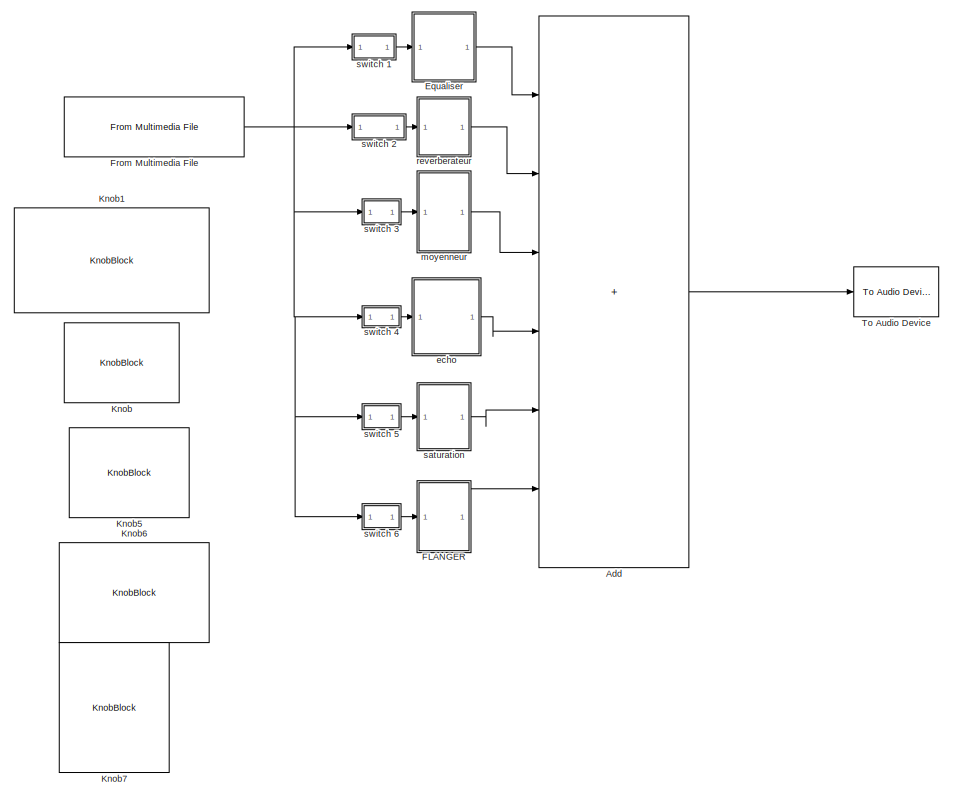
[diagram: root canvas - part 1/2, left side, full height]
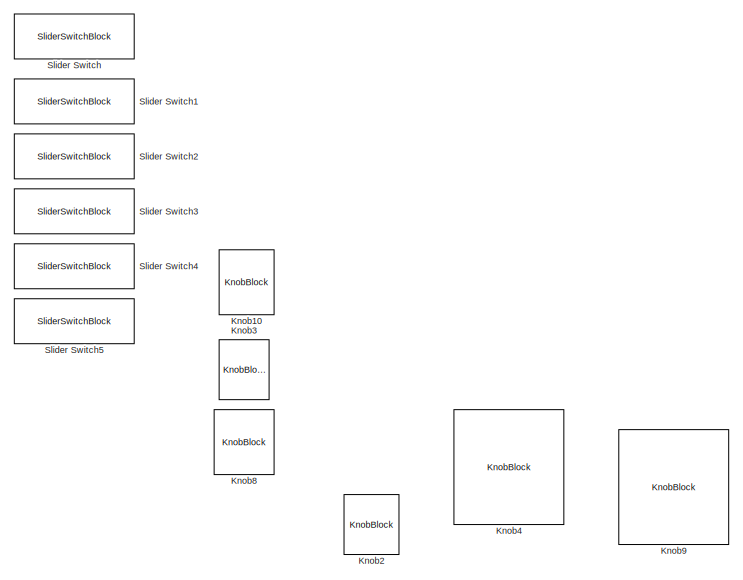
[diagram: root canvas - part 2/2, middle right region]
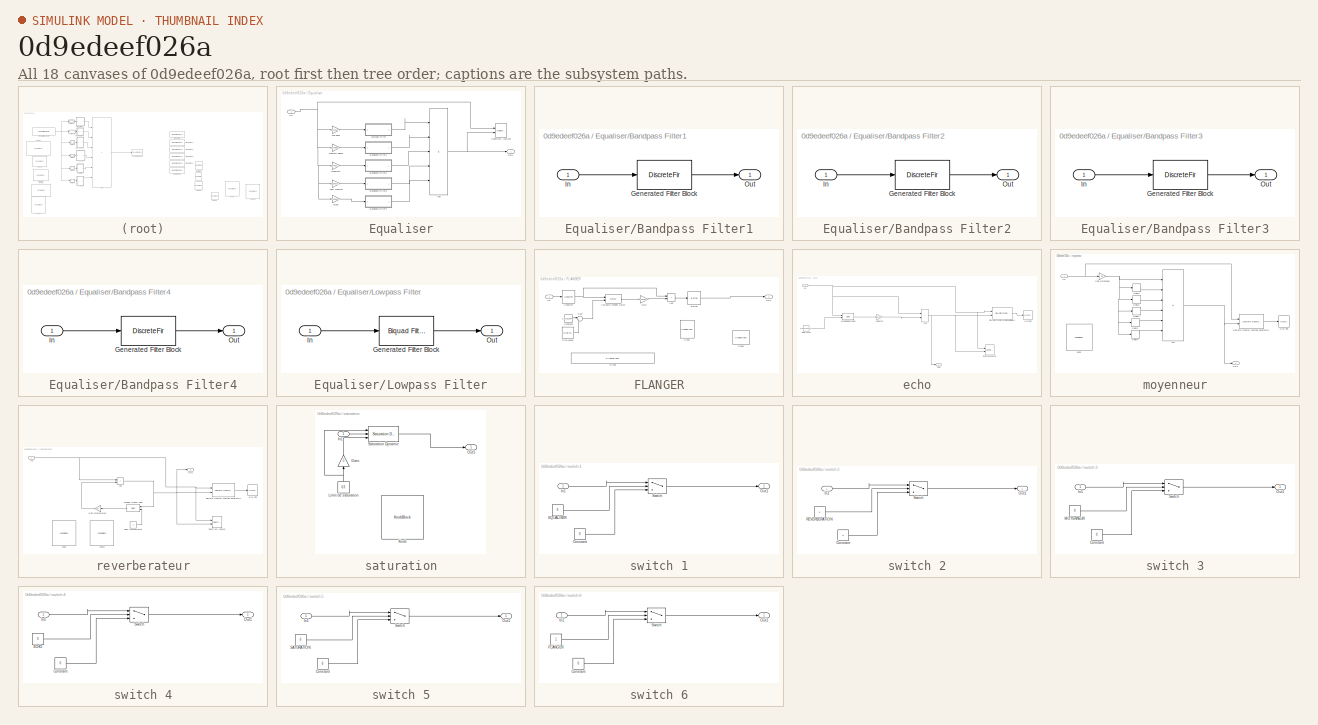
[diagram: thumbnail index - all 18 canvases of the model, root first then tree order]
MODEL slx_0d9edeef026a
KIND model
CONFIG AbsTol = auto
CONFIG EnableMultiTasking = off
CONFIG FixedStep = auto
CONFIG MaxStep = auto
CONFIG MinStep = auto
CONFIG RelTol = 1e-3
CONFIG SampleTimeConstraint = Unconstrained
CONFIG Solver = VariableStepAuto
CONFIG SolverName = VariableStepAuto
CONFIG StartTime = 0.0
CONFIG StopTime = 10.0
BLOCK [Sum] Add
  IconShape = rectangular
  Inputs = ++++++
  Ports = [6, 1]
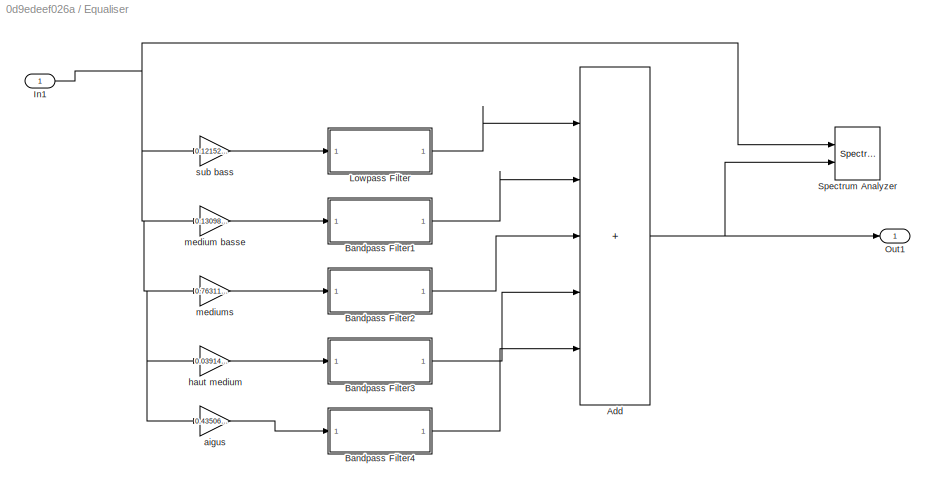
BLOCK [SubSystem] Equaliser
  Ports = [1, 1]
  RequestExecContextInheritance = off
BLOCK [Sum] Equaliser/Add
  IconShape = rectangular
  Inputs = +++++
  Ports = [5, 1]
BLOCK [SubSystem] Equaliser/Bandpass Filter1
  CopyFcn = fdesignblkfcn(gcbh, {'CopyFcn'});
  DialogController = fdesignblkfcn
  InitFcn = fdesignblkfcn(gcbh, {'InitFcn'});
  Ports = [1, 1]
  RequestExecContextInheritance = off
  UserDataPersistent = on
BLOCK [DiscreteFir] Equaliser/Bandpass Filter1/Generated Filter Block
  Coefficients = [-0.243892203726465723 0.00730478846362643628 0.00727026155694758622 0.0072195879313937273 0.00718013595561857107 0.00712564556376517333 0.00715711381682971205 0.00714005369985488275 0.00721758291259837551 0.00723368155872983979 0.00734625490622398559 0.00739114557287962916 0.00753271554443431593 0.00760297693046721717 0.00776943129724880048 0.00786214348435359915 0.00805013251467046748 0.00816254...<+1867ch>
  InputPortMap = u0
  InputProcessing = Columns as channels (frame based)
  OutputPortMap = o0
  Ports = [1, 1]
  Tag = BlockMethodSubSystem
BLOCK [Inport] Equaliser/Bandpass Filter1/In
BLOCK [Outport] Equaliser/Bandpass Filter1/Out
BLOCK [SubSystem] Equaliser/Bandpass Filter2
  CopyFcn = fdesignblkfcn(gcbh, {'CopyFcn'});
  DialogController = fdesignblkfcn
  InitFcn = fdesignblkfcn(gcbh, {'InitFcn'});
  Ports = [1, 1]
  RequestExecContextInheritance = off
  UserDataPersistent = on
BLOCK [DiscreteFir] Equaliser/Bandpass Filter2/Generated Filter Block
  Coefficients = [-0.219992515160361196 0.00041067924301887613 -0.000955230595402657137 -0.00316298935289945115 -0.00580833419451566319 -0.00875259525417781264 -0.0116667781153422696 -0.0141526454179858804 -0.0158994316506139675 -0.0166510425615134169 -0.0160921844465764553 -0.0140581982025706417 -0.0105091030386617566 -0.0053635112224876191 0.00132332363263672334 0.00917842095473490709 0.0180397330213489561 0.027...<+759ch>
  InputPortMap = u0
  InputProcessing = Columns as channels (frame based)
  OutputPortMap = o0
  Ports = [1, 1]
  Tag = BlockMethodSubSystem
BLOCK [Inport] Equaliser/Bandpass Filter2/In
BLOCK [Outport] Equaliser/Bandpass Filter2/Out
BLOCK [SubSystem] Equaliser/Bandpass Filter3
  CopyFcn = fdesignblkfcn(gcbh, {'CopyFcn'});
  DialogController = fdesignblkfcn
  InitFcn = fdesignblkfcn(gcbh, {'InitFcn'});
  Ports = [1, 1]
  RequestExecContextInheritance = off
  UserDataPersistent = on
BLOCK [DiscreteFir] Equaliser/Bandpass Filter3/Generated Filter Block
  Coefficients = [-0.0574675757817210767 0.0328729305641321523 0.0153181963810936576 0.0144000921568288899 0.0271562000272343555 0.0367681084965816307 0.0305362503447960572 0.0130025466067944153 0.00138953688409791318 0.00704909955959066772 0.0233811928243845522 0.0307456244346326173 0.0152933718616004456 -0.0156791567588090187 -0.0391235456259758224 -0.0365287210407774024 -0.0130684100901103939 0.0034452218563599...<+742ch>
  InputPortMap = u0
  InputProcessing = Columns as channels (frame based)
  OutputPortMap = o0
  Ports = [1, 1]
  Tag = BlockMethodSubSystem
BLOCK [Inport] Equaliser/Bandpass Filter3/In
BLOCK [Outport] Equaliser/Bandpass Filter3/Out
BLOCK [SubSystem] Equaliser/Bandpass Filter4
  CopyFcn = fdesignblkfcn(gcbh, {'CopyFcn'});
  DialogController = fdesignblkfcn
  InitFcn = fdesignblkfcn(gcbh, {'InitFcn'});
  Ports = [1, 1]
  RequestExecContextInheritance = off
  UserDataPersistent = on
BLOCK [DiscreteFir] Equaliser/Bandpass Filter4/Generated Filter Block
  Coefficients = [-0.00250578981709462289 -0.0442617374483873921 0.0520018635513649352 0.002449797309117022 -0.0245881630666010612 -0.0394709414897238403 -0.0435778581430307441 -0.0382951499420577171 -0.0248693538842632601 -0.00547565673543737655 0.0162839773169923506 0.0356451905802601596 0.0477574698504968712 0.0487545944562484887 0.0372470431594712839 0.0150148458334138004 -0.0128177527641289875 -0.039496661363...<+753ch>
  InputPortMap = u0
  InputProcessing = Columns as channels (frame based)
  OutputPortMap = o0
  Ports = [1, 1]
  Tag = BlockMethodSubSystem
BLOCK [Inport] Equaliser/Bandpass Filter4/In
BLOCK [Outport] Equaliser/Bandpass Filter4/Out
BLOCK [Inport] Equaliser/In1
BLOCK [SubSystem] Equaliser/Lowpass Filter
  CopyFcn = fdesignblkfcn(gcbh, {'CopyFcn'});
  DialogController = fdesignblkfcn
  InitFcn = fdesignblkfcn(gcbh, {'InitFcn'});
  Ports = [1, 1]
  RequestExecContextInheritance = off
  UserDataPersistent = on
BLOCK [Reference] Equaliser/Lowpass Filter/Generated Filter Block  REF=dsparch4/Biquad Filter
  Ports = [1, 1]
  SourceBlock = dsparch4/Biquad Filter
  SourceProductBaseCode = DS
  SourceType = Biquad Filter
  Tag = BlockMethodSubSystem
  UserDataPersistent = on
BLOCK [Inport] Equaliser/Lowpass Filter/In
BLOCK [Outport] Equaliser/Lowpass Filter/Out
BLOCK [Outport] Equaliser/Out1
BLOCK [SpectrumAnalyzer] Equaliser/Spectrum Analyzer
  Commented = on
  NumInputPorts = 2
  Ports = [2]
  ScopeSpecificationString = spbscopes.SpectrumAnalyzerBlockCfg('CurrentConfiguration', extmgr.ConfigurationSet(extmgr.Configuration('Core','General UI',true),extmgr.Configuration('Core','Source UI',true),extmgr.Configuration('Sources','WiredSimulink',true),extmgr.Configuration('Sources','Simulink',false),extmgr.Configuration('Sources','SimulinkEvent',false),extmgr.Configuration('Sources','File',false),extmgr.Configuration('S...<+3101ch>
BLOCK [Gain] Equaliser/aigus
  Gain = 0.4350650024414062
BLOCK [Gain] Equaliser/haut medium
  Gain = 0.03914401340275579
BLOCK [Gain] Equaliser/medium basse
  Gain = 0.1309811064806075
BLOCK [Gain] Equaliser/mediums
  Gain = 0.7631167738259372
BLOCK [Gain] Equaliser/sub bass
  Gain = 0.1215297902659893
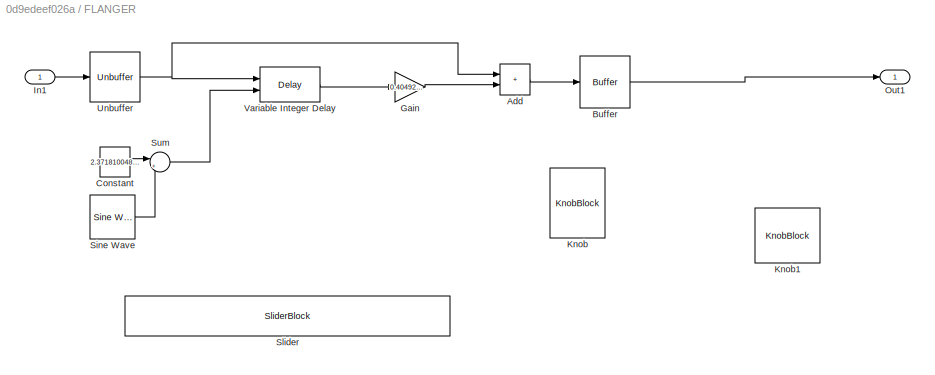
BLOCK [SubSystem] FLANGER
  Ports = [1, 1]
  RequestExecContextInheritance = off
BLOCK [Sum] FLANGER/Add
  IconShape = rectangular
  Ports = [2, 1]
BLOCK [Buffer] FLANGER/Buffer
  N = 11025
  OutputFrames = off
BLOCK [Constant] FLANGER/Constant
  Value = 2.371810048581702
BLOCK [Gain] FLANGER/Gain
  Gain = 0.4049267578125
BLOCK [Inport] FLANGER/In1
BLOCK [KnobBlock] FLANGER/Knob
  ScaleMax = 5
BLOCK [KnobBlock] FLANGER/Knob1
  ScaleMax = 1
BLOCK [Outport] FLANGER/Out1
BLOCK [Reference] FLANGER/Sine Wave  REF=dspsrcs4/Sine Wave
  Ports = [0, 1]
  SourceBlock = dspsrcs4/Sine Wave
  SourceProductBaseCode = DS
  SourceType = Sine Wave
BLOCK [SliderBlock] FLANGER/Slider
  ScaleMax = 10000
BLOCK [Sum] FLANGER/Sum
  Inputs = |++
  Ports = [2, 1]
BLOCK [Unbuffer] FLANGER/Unbuffer
  Ports = [1, 1]
BLOCK [Delay] FLANGER/Variable Integer Delay
  DelayLengthSource = Input port
  InputPortMap = u0,p1
  Ports = [2, 1]
BLOCK [Reference] From Multimedia File  REF=dspvision/From Multimedia File
  Ports = [0, 1]
  SourceBlock = dspvision/From Multimedia File
  SourceProductBaseCode = DS,HW,VP
  SourceType = From Multimedia File
BLOCK [KnobBlock] Knob
  ScaleMax = 1
BLOCK [KnobBlock] Knob1
  ScaleMax = 1
BLOCK [KnobBlock] Knob10
  ScaleMax = 1
BLOCK [KnobBlock] Knob2
BLOCK [KnobBlock] Knob3
  ScaleMax = 1
BLOCK [KnobBlock] Knob4
BLOCK [KnobBlock] Knob5
  ScaleMax = 1
BLOCK [KnobBlock] Knob6
  ScaleMax = 1
BLOCK [KnobBlock] Knob7
  ScaleMax = 1
BLOCK [KnobBlock] Knob8
  ScaleMax = 1
BLOCK [KnobBlock] Knob9
BLOCK [SliderSwitchBlock] Slider Switch
BLOCK [SliderSwitchBlock] Slider Switch1
BLOCK [SliderSwitchBlock] Slider Switch2
BLOCK [SliderSwitchBlock] Slider Switch3
BLOCK [SliderSwitchBlock] Slider Switch4
BLOCK [SliderSwitchBlock] Slider Switch5
BLOCK [Reference] To Audio Device  REF=dspobslib/To Audio
Device
  Ports = [1]
  SourceBlock = dspobslib/To Audio\nDevice
  SourceProductBaseCode = DS
  SourceType = To Audio Device
BLOCK [SubSystem] echo
  Ports = [1, 1]
  RequestExecContextInheritance = off
BLOCK [Sum] echo/Add
  IconShape = rectangular
  Ports = [2, 1]
BLOCK [ArrayPlot] echo/Array Plot
  Commented = on
  Ports = [1]
  ScopeSpecificationString = dsp.scopes.ArrayPlotBlockSpecification('CurrentConfiguration', extmgr.ConfigurationSet(extmgr.Configuration('Core','General UI',true),extmgr.Configuration('Core','Source UI',true),extmgr.Configuration('Sources','WiredSimulink',true),extmgr.Configuration('Sources','SimulinkEvent',false),extmgr.Configuration('Sources','Simulink',false),extmgr.Configuration('Sources','SPTool',false),extmgr.Configurat...<+3110ch>
BLOCK [Reference] echo/Discrete Transfer Function Estimator1  REF=dspspect3/Discrete
Transfer Function
Estimator
  Commented = on
  Ports = [2, 1]
  SourceBlock = dspspect3/Discrete\nTransfer Function\nEstimator
  SourceProductBaseCode = DS
  SourceType = Discrete Transfer Function Estimator
BLOCK [Gain] echo/Gain echo
  Gain = 36.51307018782755
BLOCK [Inport] echo/In1
BLOCK [Outport] echo/Out1
BLOCK [SpectrumAnalyzer] echo/Spectrum Analyzer
  Commented = on
  NumInputPorts = 2
  Ports = [2]
  ScopeSpecificationString = spbscopes.SpectrumAnalyzerBlockCfg('CurrentConfiguration', extmgr.ConfigurationSet(extmgr.Configuration('Core','General UI',true),extmgr.Configuration('Core','Source UI',true),extmgr.Configuration('Sources','WiredSimulink',true),extmgr.Configuration('Sources','Simulink',false),extmgr.Configuration('Sources','SimulinkEvent',false),extmgr.Configuration('Sources','File',false),extmgr.Configuration('S...<+3103ch>
BLOCK [Delay] echo/Variable Integer Delay
  DelayLengthSource = Input port
  InputPortMap = u0,p1
  Ports = [2, 1]
BLOCK [Constant] echo/delay_echo
  Value = 67.81326424983105
BLOCK [SubSystem] moyenneur
  Ports = [1, 1]
  RequestExecContextInheritance = off
BLOCK [Sum] moyenneur/Add
  IconShape = rectangular
  Inputs = ++++++
  Ports = [6, 1]
BLOCK [ArrayPlot] moyenneur/Array Plot
  Commented = on
  Ports = [1]
  ScopeSpecificationString = dsp.scopes.ArrayPlotBlockSpecification('CurrentConfiguration', extmgr.ConfigurationSet(extmgr.Configuration('Core','General UI',true),extmgr.Configuration('Core','Source UI',true),extmgr.Configuration('Sources','WiredSimulink',true),extmgr.Configuration('Sources','SimulinkEvent',false),extmgr.Configuration('Sources','Simulink',false),extmgr.Configuration('Sources','SPTool',false),extmgr.Configurat...<+3074ch>
BLOCK [Delay] moyenneur/Delay1
  DelayLength = 3
  InitialCondition = 0
  InputPortMap = u0
  InputProcessing = Columns as channels (frame based)
  Ports = [1, 1]
BLOCK [Delay] moyenneur/Delay2
  DelayLength = 4
  InitialCondition = 0
  InputPortMap = u0
  InputProcessing = Columns as channels (frame based)
  Ports = [1, 1]
BLOCK [Delay] moyenneur/Delay3
  DelayLength = 1
  InitialCondition = 0
  InputPortMap = u0
  InputProcessing = Columns as channels (frame based)
  Ports = [1, 1]
BLOCK [Delay] moyenneur/Delay4
  DelayLength = 5
  InitialCondition = 0
  InputPortMap = u0
  InputProcessing = Columns as channels (frame based)
  Ports = [1, 1]
BLOCK [Delay] moyenneur/Delay5
  InitialCondition = 0
  InputPortMap = u0
  InputProcessing = Columns as channels (frame based)
  Ports = [1, 1]
BLOCK [Reference] moyenneur/Discrete Transfer Function Estimator1  REF=dspspect3/Discrete
Transfer Function
Estimator
  Commented = on
  Ports = [2, 1]
  SourceBlock = dspspect3/Discrete\nTransfer Function\nEstimator
  SourceProductBaseCode = DS
  SourceType = Discrete Transfer Function Estimator
BLOCK [Gain] moyenneur/Gain moyenneur
  Gain = 1/6
BLOCK [Inport] moyenneur/In1
BLOCK [KnobBlock] moyenneur/Knob
BLOCK [Outport] moyenneur/Out1
BLOCK [SubSystem] reverberateur
  Ports = [1, 1]
  RequestExecContextInheritance = off
BLOCK [Sum] reverberateur/Add
  IconShape = rectangular
  Ports = [2, 1]
BLOCK [ArrayPlot] reverberateur/Array Plot
  Commented = on
  Ports = [1]
  ScopeSpecificationString = dsp.scopes.ArrayPlotBlockSpecification('CurrentConfiguration', extmgr.ConfigurationSet(extmgr.Configuration('Core','General UI',true),extmgr.Configuration('Core','Source UI',true),extmgr.Configuration('Sources','WiredSimulink',true),extmgr.Configuration('Sources','SimulinkEvent',false),extmgr.Configuration('Sources','Simulink',false),extmgr.Configuration('Sources','SPTool',false),extmgr.Configurat...<+3068ch>
BLOCK [Reference] reverberateur/Discrete Transfer Function Estimator1  REF=dspspect3/Discrete
Transfer Function
Estimator
  Commented = on
  Ports = [2, 1]
  SourceBlock = dspspect3/Discrete\nTransfer Function\nEstimator
  SourceProductBaseCode = DS
  SourceType = Discrete Transfer Function Estimator
BLOCK [Gain] reverberateur/Gain reverberateur
  Gain = 0.3
  NameLocation = top
BLOCK [Inport] reverberateur/In1
BLOCK [KnobBlock] reverberateur/Knob
BLOCK [KnobBlock] reverberateur/Knob1
BLOCK [Outport] reverberateur/Out1
BLOCK [SpectrumAnalyzer] reverberateur/Spectrum Analyzer
  Commented = on
  NumInputPorts = 2
  Ports = [2]
  ScopeSpecificationString = spbscopes.SpectrumAnalyzerBlockCfg('CurrentConfiguration', extmgr.ConfigurationSet(extmgr.Configuration('Core','General UI',true),extmgr.Configuration('Core','Source UI',true),extmgr.Configuration('Sources','WiredSimulink',true),extmgr.Configuration('Sources','Simulink',false),extmgr.Configuration('Sources','SimulinkEvent',false),extmgr.Configuration('Sources','File',false),extmgr.Configuration('S...<+2962ch>
BLOCK [Delay] reverberateur/Variable Integer Delay
  DelayLengthSource = Input port
  InputPortMap = u0,p1
  Ports = [2, 1]
BLOCK [Constant] reverberateur/delay reverberateur
BLOCK [SubSystem] saturation
  Ports = [1, 1]
  RequestExecContextInheritance = off
BLOCK [Gain] saturation/Gain
  Gain = -1
  NameLocation = right
BLOCK [Inport] saturation/In1
BLOCK [KnobBlock] saturation/Knob
BLOCK [Constant] saturation/Limit de saturation
  NameLocation = right
  Value = 0.3
BLOCK [Outport] saturation/Out1
BLOCK [Reference] saturation/Saturation Dynamic  REF=simulink/Discontinuities/Saturation
Dynamic
  Ports = [3, 1]
  SourceBlock = simulink/Discontinuities/Saturation\nDynamic
  SourceProductBaseCode = SL
  SourceType = Saturation Dynamic
BLOCK [SubSystem] switch 1
  Ports = [1, 1]
  RequestExecContextInheritance = off
BLOCK [Constant] switch 1/Constant
  Value = 0
BLOCK [Constant] switch 1/EQUALISER
  Value = 0
BLOCK [Inport] switch 1/In1
BLOCK [Outport] switch 1/Out1
BLOCK [Switch] switch 1/Switch
  Criteria = u2 > Threshold
  InputSameDT = off
  SaturateOnIntegerOverflow = off
  Threshold = 0.5
BLOCK [SubSystem] switch 2
  Ports = [1, 1]
  RequestExecContextInheritance = off
BLOCK [Constant] switch 2/Constant
  Value = 0
BLOCK [Inport] switch 2/In1
BLOCK [Outport] switch 2/Out1
BLOCK [Constant] switch 2/REVERBERATION
  Value = 0
BLOCK [Switch] switch 2/Switch
  Criteria = u2 > Threshold
  InputSameDT = off
  SaturateOnIntegerOverflow = off
  Threshold = 0.5
BLOCK [SubSystem] switch 3
  Ports = [1, 1]
  RequestExecContextInheritance = off
BLOCK [Constant] switch 3/Constant
  Value = 0
BLOCK [Inport] switch 3/In1
BLOCK [Constant] switch 3/MOYENNEUR
  Value = 0
BLOCK [Outport] switch 3/Out1
BLOCK [Switch] switch 3/Switch
  Criteria = u2 > Threshold
  InputSameDT = off
  SaturateOnIntegerOverflow = off
  Threshold = 0.5
BLOCK [SubSystem] switch 4
  Ports = [1, 1]
  RequestExecContextInheritance = off
BLOCK [Constant] switch 4/Constant
  Value = 0
BLOCK [Constant] switch 4/ECHO
  Value = 0
BLOCK [Inport] switch 4/In1
BLOCK [Outport] switch 4/Out1
BLOCK [Switch] switch 4/Switch
  Criteria = u2 > Threshold
  InputSameDT = off
  SaturateOnIntegerOverflow = off
  Threshold = 0.5
BLOCK [SubSystem] switch 5
  Ports = [1, 1]
  RequestExecContextInheritance = off
BLOCK [Constant] switch 5/Constant
  Value = 0
BLOCK [Inport] switch 5/In1
BLOCK [Outport] switch 5/Out1
BLOCK [Constant] switch 5/SATURATION
  Value = 0
BLOCK [Switch] switch 5/Switch
  Criteria = u2 > Threshold
  InputSameDT = off
  SaturateOnIntegerOverflow = off
  Threshold = 0.5
BLOCK [SubSystem] switch 6
  Ports = [1, 1]
  RequestExecContextInheritance = off
BLOCK [Constant] switch 6/Constant
  Value = 0
BLOCK [Constant] switch 6/FLANGER
BLOCK [Inport] switch 6/In1
BLOCK [Outport] switch 6/Out1
BLOCK [Switch] switch 6/Switch
  Criteria = u2 > Threshold
  InputSameDT = off
  SaturateOnIntegerOverflow = off
  Threshold = 0.5
LINE Add:1 -> To Audio Device:1
NET Equaliser/Add:1 -> Equaliser/Out1:1, Equaliser/Spectrum Analyzer:2
LINE Equaliser/Bandpass Filter1:1 -> Equaliser/Add:2
LINE Equaliser/Bandpass Filter2:1 -> Equaliser/Add:3
LINE Equaliser/Bandpass Filter3:1 -> Equaliser/Add:4
LINE Equaliser/Bandpass Filter4:1 -> Equaliser/Add:5
NET Equaliser/In1:1 -> Equaliser/Spectrum Analyzer:1, Equaliser/aigus:1, Equaliser/haut medium:1, Equaliser/medium basse:1, Equaliser/mediums:1, Equaliser/sub bass:1
LINE Equaliser/Lowpass Filter:1 -> Equaliser/Add:1
LINE Equaliser/aigus:1 -> Equaliser/Bandpass Filter4:1
LINE Equaliser/haut medium:1 -> Equaliser/Bandpass Filter3:1
LINE Equaliser/medium basse:1 -> Equaliser/Bandpass Filter1:1
LINE Equaliser/mediums:1 -> Equaliser/Bandpass Filter2:1
LINE Equaliser/sub bass:1 -> Equaliser/Lowpass Filter:1
LINE Equaliser:1 -> Add:1
LINE FLANGER/Add:1 -> FLANGER/Buffer:1
LINE FLANGER/Buffer:1 -> FLANGER/Out1:1
LINE FLANGER/Constant:1 -> FLANGER/Sum:1
LINE FLANGER/Gain:1 -> FLANGER/Add:2
LINE FLANGER/In1:1 -> FLANGER/Unbuffer:1
LINE FLANGER/Sine Wave:1 -> FLANGER/Sum:2
LINE FLANGER/Sum:1 -> FLANGER/Variable Integer Delay:2
NET FLANGER/Unbuffer:1 -> FLANGER/Add:1, FLANGER/Variable Integer Delay:1
LINE FLANGER/Variable Integer Delay:1 -> FLANGER/Gain:1
LINE FLANGER:1 -> Add:6
NET From Multimedia File:1 -> switch 1:1, switch 2:1, switch 3:1, switch 4:1, switch 5:1, switch 6:1
NET echo/Add:1 -> echo/Discrete Transfer Function Estimator1:2, echo/Out1:1, echo/Spectrum Analyzer:2
LINE echo/Discrete Transfer Function Estimator1:1 -> echo/Array Plot:1
LINE echo/Gain echo:1 -> echo/Add:2
NET echo/In1:1 -> echo/Add:1, echo/Discrete Transfer Function Estimator1:1, echo/Spectrum Analyzer:1, echo/Variable Integer Delay:1
LINE echo/Variable Integer Delay:1 -> echo/Gain echo:1
LINE echo/delay_echo:1 -> echo/Variable Integer Delay:2
LINE echo:1 -> Add:4
NET moyenneur/Add:1 -> moyenneur/Discrete Transfer Function Estimator1:2, moyenneur/Out1:1
LINE moyenneur/Delay1:1 -> moyenneur/Add:4
LINE moyenneur/Delay2:1 -> moyenneur/Add:5
LINE moyenneur/Delay3:1 -> moyenneur/Add:2
LINE moyenneur/Delay4:1 -> moyenneur/Add:6
LINE moyenneur/Delay5:1 -> moyenneur/Add:3
LINE moyenneur/Discrete Transfer Function Estimator1:1 -> moyenneur/Array Plot:1
NET moyenneur/Gain moyenneur:1 -> moyenneur/Add:1, moyenneur/Delay1:1, moyenneur/Delay2:1, moyenneur/Delay3:1, moyenneur/Delay4:1, moyenneur/Delay5:1
NET moyenneur/In1:1 -> moyenneur/Discrete Transfer Function Estimator1:1, moyenneur/Gain moyenneur:1
LINE moyenneur:1 -> Add:3
NET reverberateur/Add:1 -> reverberateur/Discrete Transfer Function Estimator1:2, reverberateur/Out1:1, reverberateur/Spectrum Analyzer:2, reverberateur/Variable Integer Delay:1
LINE reverberateur/Discrete Transfer Function Estimator1:1 -> reverberateur/Array Plot:1
LINE reverberateur/Gain reverberateur:1 -> reverberateur/Add:2
NET reverberateur/In1:1 -> reverberateur/Add:1, reverberateur/Discrete Transfer Function Estimator1:1, reverberateur/Spectrum Analyzer:1
LINE reverberateur/Variable Integer Delay:1 -> reverberateur/Gain reverberateur:1
LINE reverberateur/delay reverberateur:1 -> reverberateur/Variable Integer Delay:2
LINE reverberateur:1 -> Add:2
LINE saturation/Gain:1 -> saturation/Saturation Dynamic:3
LINE saturation/In1:1 -> saturation/Saturation Dynamic:2
NET saturation/Limit de saturation:1 -> saturation/Gain:1, saturation/Saturation Dynamic:1
LINE saturation/Saturation Dynamic:1 -> saturation/Out1:1
LINE saturation:1 -> Add:5
LINE switch 1/Constant:1 -> switch 1/Switch:3
LINE switch 1/EQUALISER:1 -> switch 1/Switch:2
LINE switch 1/In1:1 -> switch 1/Switch:1
LINE switch 1/Switch:1 -> switch 1/Out1:1
LINE switch 1:1 -> Equaliser:1
LINE switch 2/Constant:1 -> switch 2/Switch:3
LINE switch 2/In1:1 -> switch 2/Switch:1
LINE switch 2/REVERBERATION:1 -> switch 2/Switch:2
LINE switch 2/Switch:1 -> switch 2/Out1:1
LINE switch 2:1 -> reverberateur:1
LINE switch 3/Constant:1 -> switch 3/Switch:3
LINE switch 3/In1:1 -> switch 3/Switch:1
LINE switch 3/MOYENNEUR:1 -> switch 3/Switch:2
LINE switch 3/Switch:1 -> switch 3/Out1:1
LINE switch 3:1 -> moyenneur:1
LINE switch 4/Constant:1 -> switch 4/Switch:3
LINE switch 4/ECHO:1 -> switch 4/Switch:2
LINE switch 4/In1:1 -> switch 4/Switch:1
LINE switch 4/Switch:1 -> switch 4/Out1:1
LINE switch 4:1 -> echo:1
LINE switch 5/Constant:1 -> switch 5/Switch:3
LINE switch 5/In1:1 -> switch 5/Switch:1
LINE switch 5/SATURATION:1 -> switch 5/Switch:2
LINE switch 5/Switch:1 -> switch 5/Out1:1
LINE switch 5:1 -> saturation:1
LINE switch 6/Constant:1 -> switch 6/Switch:3
LINE switch 6/FLANGER:1 -> switch 6/Switch:2
LINE switch 6/In1:1 -> switch 6/Switch:1
LINE switch 6/Switch:1 -> switch 6/Out1:1
LINE switch 6:1 -> FLANGER:1
note: NET lines group one-source signal fan-out (src -> all destinations, sorted); 1:1 wires keep LINE
